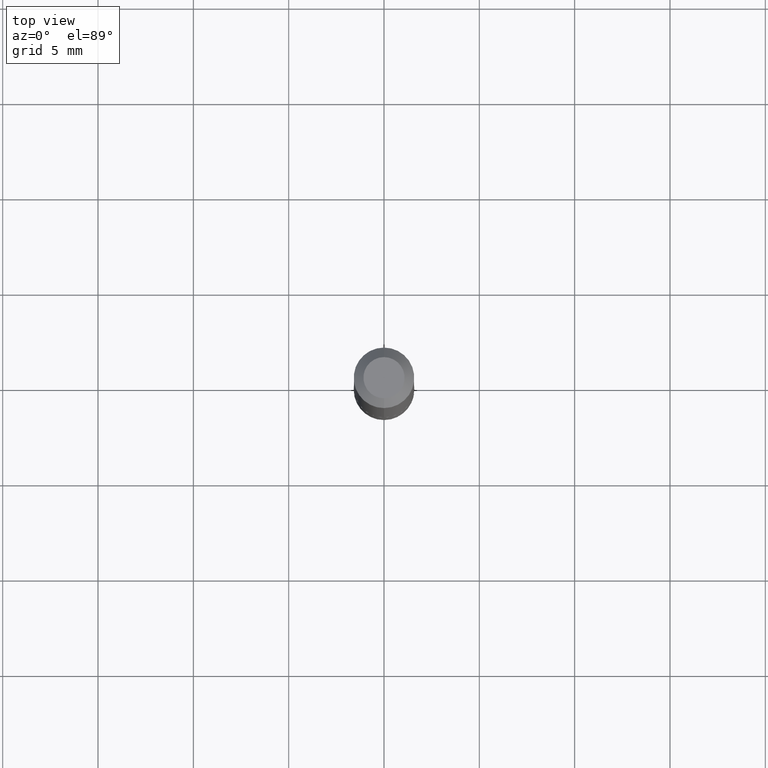
[diagram: clean part render]
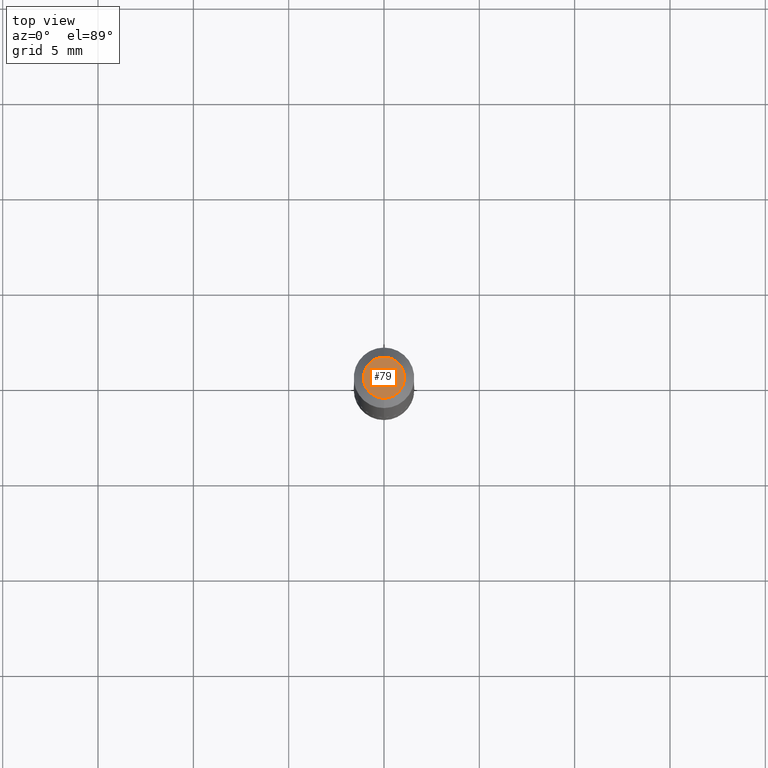
[diagram: same view with one face highlighted and labeled with its STEP entity id]
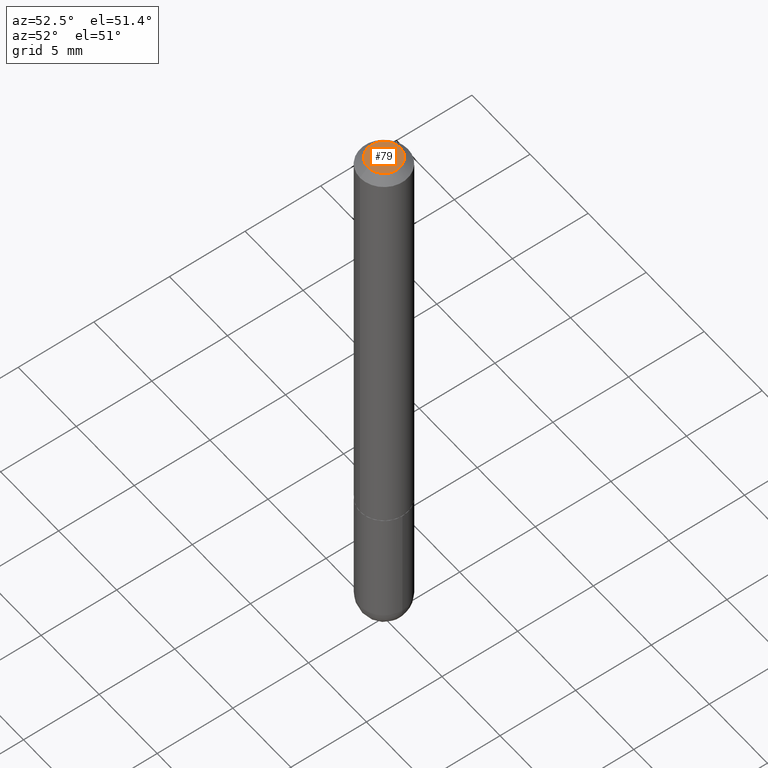
[diagram: same view with one face highlighted and labeled with its STEP entity id]
A machine part, top view. The second image highlights one B-rep face of the part: STEP entity #79.
A second angle (auxiliary view) of the same face is appended — the face is thin or edge-on in the first view.
In plain terms, the highlighted planar face has unit normal (0, -0, -1).
Its self-contained STEP definition (entity closure, byte-faithful):
#2 = ORIENTED_EDGE ( 'NONE', *, *, #289, .T. ) ;
#5 = VERTEX_POINT ( 'NONE', #353 ) ;
#15 = DIRECTION ( 'NONE',  ( -2.465882339758044742E-29, 3.462247996900564881E-15, 1.000000000000000000 ) ) ;
#41 = AXIS2_PLACEMENT_3D ( 'NONE', #337, #15, #388 ) ;
#55 = FACE_OUTER_BOUND ( 'NONE', #354, .T. ) ;
#79 = ADVANCED_FACE ( 'NONE', ( #55 ), #178, .F. ) ;
#111 = ORIENTED_EDGE ( 'NONE', *, *, #254, .T. ) ;
#114 = CARTESIAN_POINT ( 'NONE',  ( -3.653340806039298836E-45, 5.129511527685368926E-31, 1.481555201209547296E-16 ) ) ;
#119 = DIRECTION ( 'NONE',  ( -6.982962677686265922E-15, -1.000000000000000000, 3.462247996900564881E-15 ) ) ;
#178 = PLANE ( 'NONE',  #235 ) ;
#187 = CARTESIAN_POINT ( 'NONE',  ( 2.967759138016645800E-16, 0.04249999999999975325, -7.306777980779578081E-17 ) ) ;
#219 = CIRCLE ( 'NONE', #41, 0.04249999999999975325 ) ;
#231 = CARTESIAN_POINT ( 'NONE',  ( -3.601761448830040600E-16, -0.04249999999999975325, 2.953010599892278506E-16 ) ) ;
#235 = AXIS2_PLACEMENT_3D ( 'NONE', #187, #397, #308 ) ;
#254 = EDGE_CURVE ( 'NONE', #384, #5, #219, .T. ) ;
#274 = AXIS2_PLACEMENT_3D ( 'NONE', #114, #391, #119 ) ;
#289 = EDGE_CURVE ( 'NONE', #5, #384, #356, .T. ) ;
#308 = DIRECTION ( 'NONE',  ( 6.982962677686265922E-15, 1.000000000000000000, -3.462247996900565276E-15 ) ) ;
#337 = CARTESIAN_POINT ( 'NONE',  ( -3.653340806039298836E-45, 5.129511527685368926E-31, 1.481555201209547296E-16 ) ) ;
#353 = CARTESIAN_POINT ( 'NONE',  ( 3.666055405785281740E-16, 0.04249999999999975325, 1.009980252681581685E-18 ) ) ;
#354 = EDGE_LOOP ( 'NONE', ( #2, #111 ) ) ;
#356 = CIRCLE ( 'NONE', #274, 0.04249999999999975325 ) ;
#384 = VERTEX_POINT ( 'NONE', #231 ) ;
#388 = DIRECTION ( 'NONE',  ( -6.982962677686265922E-15, -1.000000000000000000, 3.462247996900564881E-15 ) ) ;
#391 = DIRECTION ( 'NONE',  ( -2.465882339758044742E-29, 3.462247996900564881E-15, 1.000000000000000000 ) ) ;
#397 = DIRECTION ( 'NONE',  ( 2.465882339758044182E-29, -3.462247996900565276E-15, -1.000000000000000000 ) ) ;